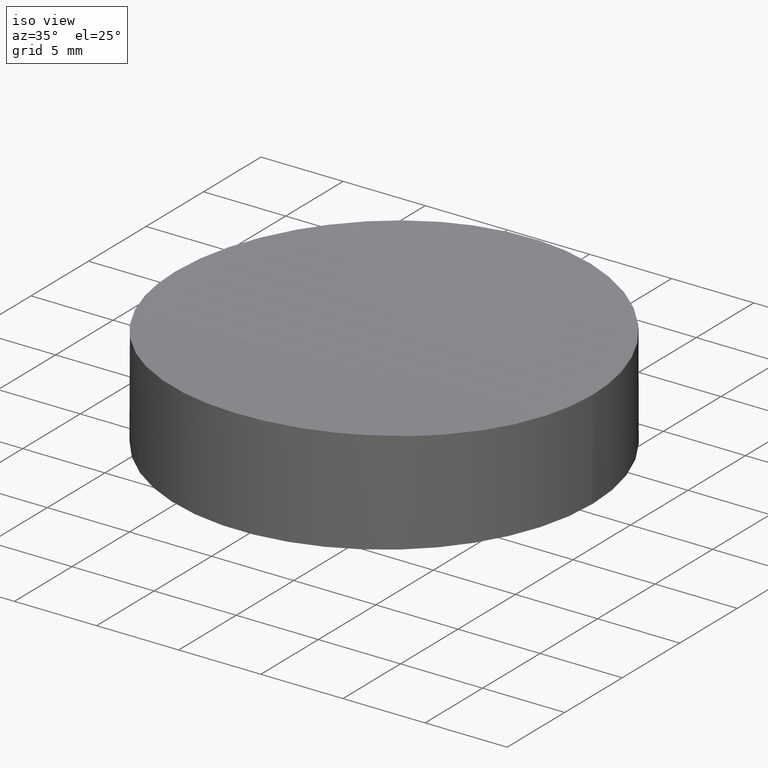
[diagram: clean part render]
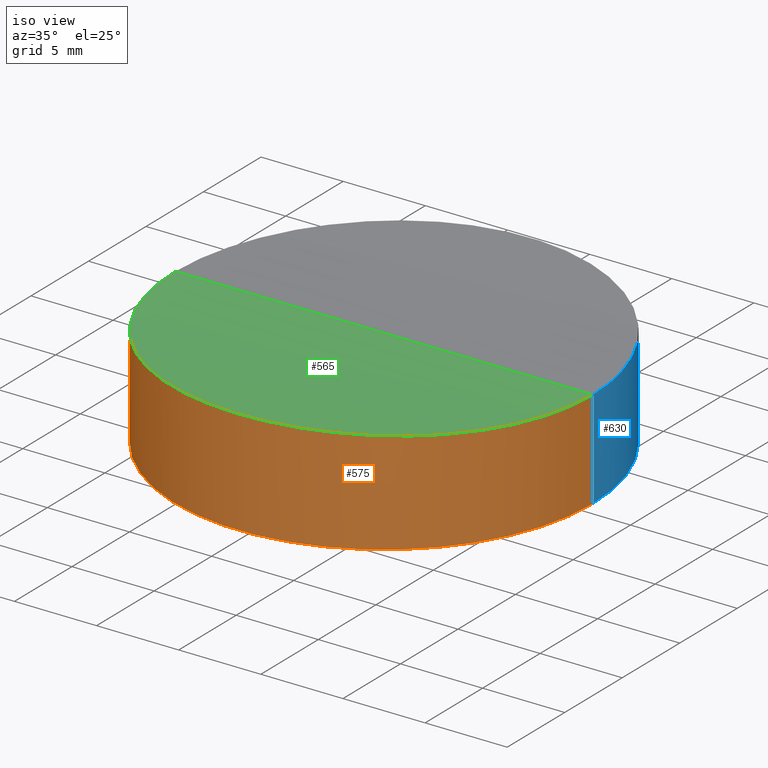
[diagram: same view with three faces highlighted in distinct colors, each labeled with its STEP entity id]
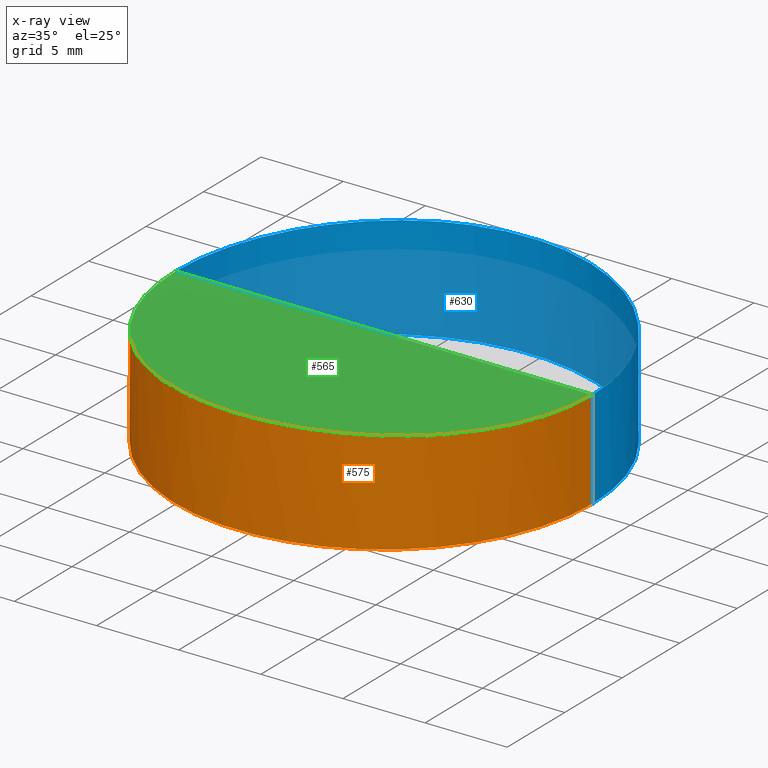
[diagram: x-ray of the same camera — body ghosted, the three highlighted faces saturated]
A machine part, iso view with three faces highlighted in distinct colors.
The next image is the same camera in x-ray (body ghosted, the three faces saturated) — at least one of them is partly hidden behind the body in this view.
Their STEP definitions:

[orange] entity #575 — the highlighted cylindrical surface (partial cylindrical patch) has radius 12.7 mm, axis along (-0, -0, -1).
#388 = VERTEX_POINT ( 'NONE', #1684 ) ;
#390 = VERTEX_POINT ( 'NONE', #1827 ) ;
#451 = EDGE_LOOP ( 'NONE', ( #524, #574, #453, #454 ) ) ;
#453 = ORIENTED_EDGE ( 'NONE', *, *, #637, .T. ) ;
#454 = ORIENTED_EDGE ( 'NONE', *, *, #667, .T. ) ;
#503 = EDGE_CURVE ( 'NONE', #388, #713, #2231, .T. ) ;
#524 = ORIENTED_EDGE ( 'NONE', *, *, #699, .F. ) ;
#574 = ORIENTED_EDGE ( 'NONE', *, *, #503, .T. ) ;
#575 = ADVANCED_FACE ( 'NONE', ( #2370 ), #2493, .T. ) ;
#632 = VERTEX_POINT ( 'NONE', #2328 ) ;
#637 = EDGE_CURVE ( 'NONE', #713, #632, #2439, .T. ) ;
#667 = EDGE_CURVE ( 'NONE', #632, #390, #2668, .T. ) ;
#699 = EDGE_CURVE ( 'NONE', #388, #390, #2705, .T. ) ;
#713 = VERTEX_POINT ( 'NONE', #2537 ) ;
#1684 = CARTESIAN_POINT ( 'NONE',  ( 12.70000000000000500, 1.555301381749067500E-015, 1.999999999999995800 ) ) ;
#1827 = CARTESIAN_POINT ( 'NONE',  ( 12.70000000000000500, 1.555301434917139000E-015, -4.000000000000000000 ) ) ;
#2092 = CARTESIAN_POINT ( 'NONE',  ( -7.388604470859069000, -10.33781600399698400, 2.267222046760642800 ) ) ;
#2093 = CARTESIAN_POINT ( 'NONE',  ( -6.353560289559221800, -11.02768945355803100, 2.303725172656423400 ) ) ;
#2094 = CARTESIAN_POINT ( 'NONE',  ( -5.623909153850859400, -11.41734296502815100, 2.325900470810826200 ) ) ;
#2095 = CARTESIAN_POINT ( 'NONE',  ( -4.469121802521158300, -11.89497662680307700, 2.353975830117742300 ) ) ;
#2096 = CARTESIAN_POINT ( 'NONE',  ( -4.072418647983648800, -12.03656196806417900, 2.362489142529019300 ) ) ;
#2097 = CARTESIAN_POINT ( 'NONE',  ( -3.275158102809504700, -12.27748985163885800, 2.377161105446660400 ) ) ;
#2098 = CARTESIAN_POINT ( 'NONE',  ( -2.872913817714648900, -12.37770122295740200, 2.383369942998577100 ) ) ;
#2099 = CARTESIAN_POINT ( 'NONE',  ( -1.655550766225447600, -12.61878112718173700, 2.398416102530490900 ) ) ;
#2100 = CARTESIAN_POINT ( 'NONE',  ( -0.8276481366964241200, -12.70067740162149800, 2.403675399554524800 ) ) ;
#2101 = CARTESIAN_POINT ( 'NONE',  ( 0.8483082274771430700, -12.69931419602769700, 2.403588660975610300 ) ) ;
#2102 = CARTESIAN_POINT ( 'NONE',  ( 1.672888267545759300, -12.61651603246785100, 2.398271942661669900 ) ) ;
#2103 = CARTESIAN_POINT ( 'NONE',  ( 2.890398404319837000, -12.37363548245251700, 2.383117635266919900 ) ) ;
#2104 = CARTESIAN_POINT ( 'NONE',  ( 3.292984803235546700, -12.27274920027010900, 2.376869078727324800 ) ) ;
#2105 = CARTESIAN_POINT ( 'NONE',  ( 4.091494995250455300, -12.03012013867323800, 2.362100338654659300 ) ) ;
#2106 = CARTESIAN_POINT ( 'NONE',  ( 4.487576126918870800, -11.88799977288512900, 2.353560046006068200 ) ) ;
#2107 = CARTESIAN_POINT ( 'NONE',  ( 5.639517414540563300, -11.40952916255220900, 2.325452939278816800 ) ) ;
#2108 = CARTESIAN_POINT ( 'NONE',  ( 6.368497793377156500, -11.01914604698337100, 2.303249985946835400 ) ) ;
#2109 = CARTESIAN_POINT ( 'NONE',  ( 7.403816264969353100, -10.32694730556058900, 2.266658902943366800 ) ) ;
#2110 = CARTESIAN_POINT ( 'NONE',  ( 7.740707249323311800, -10.07701176738241200, 2.253850004531733100 ) ) ;
#2111 = CARTESIAN_POINT ( 'NONE',  ( 8.386557480830829200, -9.546222734695144000, 2.227779119138635800 ) ) ;
#2161 = CARTESIAN_POINT ( 'NONE',  ( -12.70000000000000500, 7.735410065608419200E-016, 2.000000000000001300 ) ) ;
#2162 = CARTESIAN_POINT ( 'NONE',  ( -12.70000000000000300, -0.8391532630546664200, 2.000000000000001300 ) ) ;
#2163 = CARTESIAN_POINT ( 'NONE',  ( -12.61763786480346300, -1.669384181719684600, 2.005280313228064800 ) ) ;
#2164 = CARTESIAN_POINT ( 'NONE',  ( -12.37122047267850900, -2.901432615925214600, 2.020625125215953100 ) ) ;
#2165 = CARTESIAN_POINT ( 'NONE',  ( -12.26873508486799700, -3.307638366674052300, 2.026958691472615200 ) ) ;
#2166 = CARTESIAN_POINT ( 'NONE',  ( -12.02654079483861000, -4.101786032626258700, 2.041671658594710800 ) ) ;
#2167 = CARTESIAN_POINT ( 'NONE',  ( -11.74655671263795200, -4.880630826817265300, 2.058466114437714500 ) ) ;
#2168 = CARTESIAN_POINT ( 'NONE',  ( -11.39186837700602500, -5.629235482040930300, 2.078899974829728300 ) ) ;
#2169 = CARTESIAN_POINT ( 'NONE',  ( -10.99918146796549000, -6.362465266393438200, 2.100891539956230700 ) ) ;
#2170 = CARTESIAN_POINT ( 'NONE',  ( -10.78247057822795100, -6.723259149836504600, 2.112736927525555400 ) ) ;
#2171 = CARTESIAN_POINT ( 'NONE',  ( -10.08608729981529400, -7.762498595513628500, 2.149495311228891900 ) ) ;
#2172 = CARTESIAN_POINT ( 'NONE',  ( -9.560226869971947000, -8.401106609820749000, 2.175664939262353500 ) ) ;
#2173 = CARTESIAN_POINT ( 'NONE',  ( -8.680775445810230200, -9.279319488957433700, 2.215165494210416900 ) ) ;
#2174 = CARTESIAN_POINT ( 'NONE',  ( -8.372407273907677800, -9.558679325314427500, 2.228374578367898100 ) ) ;
#2175 = CARTESIAN_POINT ( 'NONE',  ( -7.724177416806991700, -10.08972929458786400, 2.254491823202657000 ) ) ;
#2231 = B_SPLINE_CURVE_WITH_KNOTS ( 'NONE', 3,
 ( #2287, #2286, #2285, #2284, #2283, #2282, #2281, #2280, #2279, #2278, #2277, #2276, #2275, #2111, #2110, #2109, #2108, #2107, #2106, #2105, #2104, #2103, #2102, #2101, #2100, #2099, #2098, #2097, #2096, #2095, #2094, #2093, #2092, #2175, #2174, #2173, #2172, #2171, #2170, #2169, #2168, #2167, #2166, #2165, #2164, #2163, #2162, #2161 ),
 .UNSPECIFIED., .F., .F.,
 ( 4, 2, 2, 1, 2, 2, 2, 2, 2, 2, 2, 2, 2, 2, 2, 2, 2, 2, 2, 2, 2, 1, 2, 2, 4 ),
 ( 0.03971598003820570000, 0.04219765973166782900, 0.04343849957839889700, 0.04467933942512995700, 0.04592017927186102500, 0.04716101911859208600, 0.04964269881205421500, 0.05088353865878527500, 0.05212437850551634300, 0.05460605819897845800, 0.05584689804570952500, 0.05708773789244058600, 0.05956941758590271500, 0.06205109727936483600, 0.06329193712609590400, 0.06453277697282697200, 0.06701445666628910700, 0.06825529651302016100, 0.06949613635975122900, 0.07197781605321335000, 0.07321865589994441800, 0.07445949574667548600, 0.07570033559340655400, 0.07694117544013762100, 0.07942285513359974300 ),
 .UNSPECIFIED. ) ;
#2275 = CARTESIAN_POINT ( 'NONE',  ( 8.694039573450229600, -9.266877295317971900, 2.214587751176750900 ) ) ;
#2276 = CARTESIAN_POINT ( 'NONE',  ( 9.571506192772881500, -8.388183644061646400, 2.175121108235243700 ) ) ;
#2277 = CARTESIAN_POINT ( 'NONE',  ( 10.09694224418786800, -7.748568066842769200, 2.148947048080419800 ) ) ;
#2278 = CARTESIAN_POINT ( 'NONE',  ( 10.79323682892251500, -6.706017909089646300, 2.112155842151472100 ) ) ;
#2279 = CARTESIAN_POINT ( 'NONE',  ( 11.00874976205191500, -6.345854026946872400, 2.100364016455334300 ) ) ;
#2280 = CARTESIAN_POINT ( 'NONE',  ( 11.39977427342449800, -5.613161423811448900, 2.078448514135381200 ) ) ;
#2281 = CARTESIAN_POINT ( 'NONE',  ( 11.75319859197980100, -4.864619427894196800, 2.058074213007907300 ) ) ;
#2282 = CARTESIAN_POINT ( 'NONE',  ( 12.03235775981117200, -4.084758851256675700, 2.041321477071881900 ) ) ;
#2283 = CARTESIAN_POINT ( 'NONE',  ( 12.27377393938599500, -3.288975739931371900, 2.026649250229401100 ) ) ;
#2284 = CARTESIAN_POINT ( 'NONE',  ( 12.37599559594765900, -2.880786299286889600, 2.020329293124447200 ) ) ;
#2285 = CARTESIAN_POINT ( 'NONE',  ( 12.61965315346128900, -1.652616428162615000, 2.005151661670250700 ) ) ;
#2286 = CARTESIAN_POINT ( 'NONE',  ( 12.70000000000000100, -0.8287822124059405200, 2.000000000000001300 ) ) ;
#2287 = CARTESIAN_POINT ( 'NONE',  ( 12.70000000000000500, 1.555301381749067500E-015, 1.999999999999995800 ) ) ;
#2321 = DIRECTION ( 'NONE',  ( -0.0000000000000000000, -0.0000000000000000000, -1.000000000000000000 ) ) ;
#2322 = VECTOR ( 'NONE', #2321, 1000.000000000000000 ) ;
#2323 = CARTESIAN_POINT ( 'NONE',  ( -12.70000000000000500, 0.0000000000000000000, 4.000000000000000000 ) ) ;
#2328 = CARTESIAN_POINT ( 'NONE',  ( -12.70000000000000500, 0.0000000000000000000, -4.000000000000000000 ) ) ;
#2370 = FACE_OUTER_BOUND ( 'NONE', #451, .T. ) ;
#2371 = CARTESIAN_POINT ( 'NONE',  ( 0.0000000000000000000, 0.0000000000000000000, 4.000000000000000000 ) ) ;
#2439 = LINE ( 'NONE', #2323, #2322 ) ;
#2490 = DIRECTION ( 'NONE',  ( -1.000000000000000000, 0.0000000000000000000, 0.0000000000000000000 ) ) ;
#2491 = DIRECTION ( 'NONE',  ( -0.0000000000000000000, -0.0000000000000000000, -1.000000000000000000 ) ) ;
#2493 = CYLINDRICAL_SURFACE ( 'NONE', #2494, 12.70000000000000500 ) ;
#2494 = AXIS2_PLACEMENT_3D ( 'NONE', #2371, #2491, #2490 ) ;
#2537 = CARTESIAN_POINT ( 'NONE',  ( -12.70000000000000500, 7.735410065608419200E-016, 2.000000000000001300 ) ) ;
#2618 = DIRECTION ( 'NONE',  ( -0.0000000000000000000, -0.0000000000000000000, -1.000000000000000000 ) ) ;
#2619 = VECTOR ( 'NONE', #2618, 1000.000000000000000 ) ;
#2668 = CIRCLE ( 'NONE', #2750, 12.70000000000000500 ) ;
#2699 = DIRECTION ( 'NONE',  ( 1.000000000000000000, 0.0000000000000000000, 0.0000000000000000000 ) ) ;
#2700 = DIRECTION ( 'NONE',  ( 0.0000000000000000000, 0.0000000000000000000, 1.000000000000000000 ) ) ;
#2704 = CARTESIAN_POINT ( 'NONE',  ( 12.70000000000000500, 1.555301434917139000E-015, 4.000000000000000000 ) ) ;
#2705 = LINE ( 'NONE', #2704, #2619 ) ;
#2723 = CARTESIAN_POINT ( 'NONE',  ( 0.0000000000000000000, 0.0000000000000000000, -4.000000000000000000 ) ) ;
#2750 = AXIS2_PLACEMENT_3D ( 'NONE', #2723, #2700, #2699 ) ;

[blue] entity #630 — the highlighted cylindrical surface (partial cylindrical patch) has radius 12.7 mm, axis along (-0, -0, -1).
#388 = VERTEX_POINT ( 'NONE', #1684 ) ;
#390 = VERTEX_POINT ( 'NONE', #1827 ) ;
#626 = ORIENTED_EDGE ( 'NONE', *, *, #637, .F. ) ;
#629 = ORIENTED_EDGE ( 'NONE', *, *, #699, .T. ) ;
#630 = ADVANCED_FACE ( 'NONE', ( #2393 ), #2394, .T. ) ;
#631 = EDGE_LOOP ( 'NONE', ( #646, #629, #636, #626 ) ) ;
#632 = VERTEX_POINT ( 'NONE', #2328 ) ;
#636 = ORIENTED_EDGE ( 'NONE', *, *, #638, .T. ) ;
#637 = EDGE_CURVE ( 'NONE', #713, #632, #2439, .T. ) ;
#638 = EDGE_CURVE ( 'NONE', #390, #632, #2319, .T. ) ;
#646 = ORIENTED_EDGE ( 'NONE', *, *, #714, .T. ) ;
#699 = EDGE_CURVE ( 'NONE', #388, #390, #2705, .T. ) ;
#713 = VERTEX_POINT ( 'NONE', #2537 ) ;
#714 = EDGE_CURVE ( 'NONE', #713, #388, #2948, .T. ) ;
#1684 = CARTESIAN_POINT ( 'NONE',  ( 12.70000000000000500, 1.555301381749067500E-015, 1.999999999999995800 ) ) ;
#1827 = CARTESIAN_POINT ( 'NONE',  ( 12.70000000000000500, 1.555301434917139000E-015, -4.000000000000000000 ) ) ;
#2316 = DIRECTION ( 'NONE',  ( 1.000000000000000000, 0.0000000000000000000, 0.0000000000000000000 ) ) ;
#2317 = DIRECTION ( 'NONE',  ( 0.0000000000000000000, 0.0000000000000000000, 1.000000000000000000 ) ) ;
#2318 = CARTESIAN_POINT ( 'NONE',  ( 0.0000000000000000000, 0.0000000000000000000, -4.000000000000000000 ) ) ;
#2319 = CIRCLE ( 'NONE', #2325, 12.70000000000000500 ) ;
#2321 = DIRECTION ( 'NONE',  ( -0.0000000000000000000, -0.0000000000000000000, -1.000000000000000000 ) ) ;
#2322 = VECTOR ( 'NONE', #2321, 1000.000000000000000 ) ;
#2323 = CARTESIAN_POINT ( 'NONE',  ( -12.70000000000000500, 0.0000000000000000000, 4.000000000000000000 ) ) ;
#2325 = AXIS2_PLACEMENT_3D ( 'NONE', #2318, #2317, #2316 ) ;
#2328 = CARTESIAN_POINT ( 'NONE',  ( -12.70000000000000500, 0.0000000000000000000, -4.000000000000000000 ) ) ;
#2347 = CARTESIAN_POINT ( 'NONE',  ( 0.0000000000000000000, 0.0000000000000000000, 4.000000000000000000 ) ) ;
#2392 = AXIS2_PLACEMENT_3D ( 'NONE', #2347, #2444, #2438 ) ;
#2393 = FACE_OUTER_BOUND ( 'NONE', #631, .T. ) ;
#2394 = CYLINDRICAL_SURFACE ( 'NONE', #2392, 12.70000000000000500 ) ;
#2438 = DIRECTION ( 'NONE',  ( -1.000000000000000000, 0.0000000000000000000, 0.0000000000000000000 ) ) ;
#2439 = LINE ( 'NONE', #2323, #2322 ) ;
#2444 = DIRECTION ( 'NONE',  ( -0.0000000000000000000, -0.0000000000000000000, -1.000000000000000000 ) ) ;
#2537 = CARTESIAN_POINT ( 'NONE',  ( -12.70000000000000500, 7.735410065608419200E-016, 2.000000000000001300 ) ) ;
#2618 = DIRECTION ( 'NONE',  ( -0.0000000000000000000, -0.0000000000000000000, -1.000000000000000000 ) ) ;
#2619 = VECTOR ( 'NONE', #2618, 1000.000000000000000 ) ;
#2704 = CARTESIAN_POINT ( 'NONE',  ( 12.70000000000000500, 1.555301434917139000E-015, 4.000000000000000000 ) ) ;
#2705 = LINE ( 'NONE', #2704, #2619 ) ;
#2877 = CARTESIAN_POINT ( 'NONE',  ( 12.70000000000000500, 1.555301381749067500E-015, 1.999999999999995800 ) ) ;
#2878 = CARTESIAN_POINT ( 'NONE',  ( 12.70000000000001000, 0.4144861277153563100, 2.000000000000001800 ) ) ;
#2879 = CARTESIAN_POINT ( 'NONE',  ( 12.67976090682242200, 0.8302186030310151300, 2.001288379649720700 ) ) ;
#2880 = CARTESIAN_POINT ( 'NONE',  ( 12.59745373520595800, 1.664259286393326300, 2.006489720899927500 ) ) ;
#2881 = CARTESIAN_POINT ( 'NONE',  ( 12.53573625039880600, 2.077861640798814400, 2.010379976068354100 ) ) ;
#2882 = CARTESIAN_POINT ( 'NONE',  ( 12.29217045674118200, 3.298683800227344400, 2.025548655720571700 ) ) ;
#2883 = CARTESIAN_POINT ( 'NONE',  ( 12.05204324687147200, 4.090463364847195700, 2.040352765529843500 ) ) ;
#2884 = CARTESIAN_POINT ( 'NONE',  ( 11.57398288561062900, 5.244647691170178500, 2.068407264475261400 ) ) ;
#2885 = CARTESIAN_POINT ( 'NONE',  ( 11.39378296126806600, 5.625417092132650500, 2.078791131580169300 ) ) ;
#2886 = CARTESIAN_POINT ( 'NONE',  ( 11.00056021974050900, 6.360132269128002700, 2.100815933656190500 ) ) ;
#2948 = B_SPLINE_CURVE_WITH_KNOTS ( 'NONE', 3,
 ( #2989, #2988, #2987, #2986, #2985, #2984, #2983, #2982, #2981, #2980, #2979, #2978, #2977, #2976, #2975, #2974, #2973, #2972, #2971, #2970, #2969, #2968, #2967, #2966, #2965, #2964, #2963, #2962, #2961, #2960, #2959, #2958, #2957, #2956, #2955, #2954, #2953, #2952, #2951, #2886, #2885, #2884, #2883, #2882, #2881, #2880, #2879, #2878, #2877 ),
 .UNSPECIFIED., .F., .F.,
 ( 4, 2, 2, 2, 2, 2, 2, 2, 2, 1, 2, 2, 2, 2, 2, 2, 2, 2, 2, 2, 2, 2, 2, 2, 4 ),
 ( 7.472843920192310500E-019, 0.002482248752387867100, 0.003723373128581800000, 0.004964497504775733400, 0.007446746257163597500, 0.008687870633357526500, 0.009928995009551458100, 0.01241124376193931600, 0.01365236813813324800, 0.01489349251432717600, 0.01613461689052110200, 0.01737574126671503200, 0.01985799001910288800, 0.02109911439529681800, 0.02234023877149074500, 0.02482248752387859700, 0.02606361190007252700, 0.02730473627626645000, 0.02978698502865430300, 0.03226923378104214900, 0.03351035815723607500, 0.03475148253342999500, 0.03723373128581785500, 0.03847485566201177400, 0.03971598003820570000 ),
 .UNSPECIFIED. ) ;
#2951 = CARTESIAN_POINT ( 'NONE',  ( 10.78710851142859500, 6.715608279116313600, 2.112484159309983200 ) ) ;
#2952 = CARTESIAN_POINT ( 'NONE',  ( 10.09731352463083500, 7.747172256300341800, 2.148918301366808500 ) ) ;
#2953 = CARTESIAN_POINT ( 'NONE',  ( 9.571352663058334500, 8.389407237764459100, 2.175151990581756700 ) ) ;
#2954 = CARTESIAN_POINT ( 'NONE',  ( 8.385401806321377500, 9.574861991080116000, 2.228445334076837500 ) ) ;
#2955 = CARTESIAN_POINT ( 'NONE',  ( 7.743981436524003400, 10.09977743936941500, 2.254645977211236400 ) ) ;
#2956 = CARTESIAN_POINT ( 'NONE',  ( 6.711936032217841400, 10.78939770807072800, 2.291107141918747600 ) ) ;
#2957 = CARTESIAN_POINT ( 'NONE',  ( 6.356182095544022900, 11.00285800646163100, 2.302789429126801800 ) ) ;
#2958 = CARTESIAN_POINT ( 'NONE',  ( 5.620620563876059400, 11.39616425026441600, 2.324848229733345500 ) ) ;
#2959 = CARTESIAN_POINT ( 'NONE',  ( 5.239936807328471800, 11.57610430663711700, 2.335232946739344200 ) ) ;
#2960 = CARTESIAN_POINT ( 'NONE',  ( 4.086505127549452600, 12.05333939181437100, 2.363283479942750500 ) ) ;
#2961 = CARTESIAN_POINT ( 'NONE',  ( 3.294701605476496400, 12.29327893600819300, 2.378103151007764400 ) ) ;
#2962 = CARTESIAN_POINT ( 'NONE',  ( 2.072906252431167200, 12.53656655889243000, 2.393283927966209000 ) ) ;
#2963 = CARTESIAN_POINT ( 'NONE',  ( 1.658104162780284400, 12.59824719085119300, 2.397179758355953500 ) ) ;
#2964 = CARTESIAN_POINT ( 'NONE',  ( 0.8251150661137934800, 12.68007597864031900, 2.402361351954454400 ) ) ;
#2965 = CARTESIAN_POINT ( 'NONE',  ( 0.4097417701725463700, 12.70014740819631700, 2.403641676928040600 ) ) ;
#2966 = CARTESIAN_POINT ( 'NONE',  ( -0.8331147684233760600, 12.69970274515089200, 2.403613383726219700 ) ) ;
#2967 = CARTESIAN_POINT ( 'NONE',  ( -1.657365612972364000, 12.61910536619644500, 2.398434712431031000 ) ) ;
#2968 = CARTESIAN_POINT ( 'NONE',  ( -2.887090310335397500, 12.37454563992251800, 2.383173826507848100 ) ) ;
#2969 = CARTESIAN_POINT ( 'NONE',  ( -3.294718615978973600, 12.27222493930153200, 2.376837153929217000 ) ) ;
#2970 = CARTESIAN_POINT ( 'NONE',  ( -4.089904550303071300, 12.03060083656270200, 2.362129611786817600 ) ) ;
#2971 = CARTESIAN_POINT ( 'NONE',  ( -4.869469068220247700, 11.75119573401173400, 2.345337562814080000 ) ) ;
#2972 = CARTESIAN_POINT ( 'NONE',  ( -5.618239315415783300, 11.39728586267667300, 2.324913031262356300 ) ) ;
#2973 = CARTESIAN_POINT ( 'NONE',  ( -6.351390703768594800, 11.00557014283835500, 2.302939664001123300 ) ) ;
#2974 = CARTESIAN_POINT ( 'NONE',  ( -6.712069616490268200, 10.78946141326327000, 2.291108004952615100 ) ) ;
#2975 = CARTESIAN_POINT ( 'NONE',  ( -7.753407470635663000, 10.09317081466105700, 2.254301721370537000 ) ) ;
#2976 = CARTESIAN_POINT ( 'NONE',  ( -8.392760262152716400, 9.567535623547597000, 2.228115316494326600 ) ) ;
#2977 = CARTESIAN_POINT ( 'NONE',  ( -9.271519500645128500, 8.689100461532985900, 2.188625335927588000 ) ) ;
#2978 = CARTESIAN_POINT ( 'NONE',  ( -9.550964742982245100, 8.381183918893571100, 2.175425476067429600 ) ) ;
#2979 = CARTESIAN_POINT ( 'NONE',  ( -10.08205419769909700, 7.734167993951780700, 2.149337071416413700 ) ) ;
#2980 = CARTESIAN_POINT ( 'NONE',  ( -10.33129341991312900, 7.397742248627085200, 2.136564965827267000 ) ) ;
#2981 = CARTESIAN_POINT ( 'NONE',  ( -11.02265095616004400, 6.362391242332801500, 2.100032531708701200 ) ) ;
#2982 = CARTESIAN_POINT ( 'NONE',  ( -11.41283538777927700, 5.632959334504684900, 2.077861389834879400 ) ) ;
#2983 = CARTESIAN_POINT ( 'NONE',  ( -11.89108636183868700, 4.479433641486018300, 2.049799678562251900 ) ) ;
#2984 = CARTESIAN_POINT ( 'NONE',  ( -12.03304610097763200, 4.082848089856195600, 2.041280196571262400 ) ) ;
#2985 = CARTESIAN_POINT ( 'NONE',  ( -12.27493101618141600, 3.284800685137989600, 2.026578369999672000 ) ) ;
#2986 = CARTESIAN_POINT ( 'NONE',  ( -12.37552371524483300, 2.882303675063078600, 2.020358284304327500 ) ) ;
#2987 = CARTESIAN_POINT ( 'NONE',  ( -12.61760998082340600, 1.664621632474753100, 2.005279730504226300 ) ) ;
#2988 = CARTESIAN_POINT ( 'NONE',  ( -12.70000000000000600, 0.8393456842021888000, 2.000000000000001800 ) ) ;
#2989 = CARTESIAN_POINT ( 'NONE',  ( -12.70000000000000500, 7.735410065608419200E-016, 2.000000000000001300 ) ) ;

[green] entity #565 — the highlighted cylindrical surface (partial cylindrical patch) has radius 200 mm, axis along (1, -0, -0).
#388 = VERTEX_POINT ( 'NONE', #1684 ) ;
#389 = EDGE_CURVE ( 'NONE', #713, #388, #1699, .T. ) ;
#503 = EDGE_CURVE ( 'NONE', #388, #713, #2231, .T. ) ;
#562 = ORIENTED_EDGE ( 'NONE', *, *, #503, .F. ) ;
#565 = ADVANCED_FACE ( 'NONE', ( #2482 ), #2481, .F. ) ;
#566 = ORIENTED_EDGE ( 'NONE', *, *, #389, .F. ) ;
#568 = EDGE_LOOP ( 'NONE', ( #566, #562 ) ) ;
#713 = VERTEX_POINT ( 'NONE', #2537 ) ;
#1684 = CARTESIAN_POINT ( 'NONE',  ( 12.70000000000000500, 1.555301381749067500E-015, 1.999999999999995800 ) ) ;
#1696 = DIRECTION ( 'NONE',  ( 1.000000000000000000, -0.0000000000000000000, -0.0000000000000000000 ) ) ;
#1697 = VECTOR ( 'NONE', #1696, 1000.000000000000000 ) ;
#1698 = CARTESIAN_POINT ( 'NONE',  ( -12.70000000000000500, 0.0000000000000000000, 2.000000000000001800 ) ) ;
#1699 = LINE ( 'NONE', #1698, #1697 ) ;
#2092 = CARTESIAN_POINT ( 'NONE',  ( -7.388604470859069000, -10.33781600399698400, 2.267222046760642800 ) ) ;
#2093 = CARTESIAN_POINT ( 'NONE',  ( -6.353560289559221800, -11.02768945355803100, 2.303725172656423400 ) ) ;
#2094 = CARTESIAN_POINT ( 'NONE',  ( -5.623909153850859400, -11.41734296502815100, 2.325900470810826200 ) ) ;
#2095 = CARTESIAN_POINT ( 'NONE',  ( -4.469121802521158300, -11.89497662680307700, 2.353975830117742300 ) ) ;
#2096 = CARTESIAN_POINT ( 'NONE',  ( -4.072418647983648800, -12.03656196806417900, 2.362489142529019300 ) ) ;
#2097 = CARTESIAN_POINT ( 'NONE',  ( -3.275158102809504700, -12.27748985163885800, 2.377161105446660400 ) ) ;
#2098 = CARTESIAN_POINT ( 'NONE',  ( -2.872913817714648900, -12.37770122295740200, 2.383369942998577100 ) ) ;
#2099 = CARTESIAN_POINT ( 'NONE',  ( -1.655550766225447600, -12.61878112718173700, 2.398416102530490900 ) ) ;
#2100 = CARTESIAN_POINT ( 'NONE',  ( -0.8276481366964241200, -12.70067740162149800, 2.403675399554524800 ) ) ;
#2101 = CARTESIAN_POINT ( 'NONE',  ( 0.8483082274771430700, -12.69931419602769700, 2.403588660975610300 ) ) ;
#2102 = CARTESIAN_POINT ( 'NONE',  ( 1.672888267545759300, -12.61651603246785100, 2.398271942661669900 ) ) ;
#2103 = CARTESIAN_POINT ( 'NONE',  ( 2.890398404319837000, -12.37363548245251700, 2.383117635266919900 ) ) ;
#2104 = CARTESIAN_POINT ( 'NONE',  ( 3.292984803235546700, -12.27274920027010900, 2.376869078727324800 ) ) ;
#2105 = CARTESIAN_POINT ( 'NONE',  ( 4.091494995250455300, -12.03012013867323800, 2.362100338654659300 ) ) ;
#2106 = CARTESIAN_POINT ( 'NONE',  ( 4.487576126918870800, -11.88799977288512900, 2.353560046006068200 ) ) ;
#2107 = CARTESIAN_POINT ( 'NONE',  ( 5.639517414540563300, -11.40952916255220900, 2.325452939278816800 ) ) ;
#2108 = CARTESIAN_POINT ( 'NONE',  ( 6.368497793377156500, -11.01914604698337100, 2.303249985946835400 ) ) ;
#2109 = CARTESIAN_POINT ( 'NONE',  ( 7.403816264969353100, -10.32694730556058900, 2.266658902943366800 ) ) ;
#2110 = CARTESIAN_POINT ( 'NONE',  ( 7.740707249323311800, -10.07701176738241200, 2.253850004531733100 ) ) ;
#2111 = CARTESIAN_POINT ( 'NONE',  ( 8.386557480830829200, -9.546222734695144000, 2.227779119138635800 ) ) ;
#2161 = CARTESIAN_POINT ( 'NONE',  ( -12.70000000000000500, 7.735410065608419200E-016, 2.000000000000001300 ) ) ;
#2162 = CARTESIAN_POINT ( 'NONE',  ( -12.70000000000000300, -0.8391532630546664200, 2.000000000000001300 ) ) ;
#2163 = CARTESIAN_POINT ( 'NONE',  ( -12.61763786480346300, -1.669384181719684600, 2.005280313228064800 ) ) ;
#2164 = CARTESIAN_POINT ( 'NONE',  ( -12.37122047267850900, -2.901432615925214600, 2.020625125215953100 ) ) ;
#2165 = CARTESIAN_POINT ( 'NONE',  ( -12.26873508486799700, -3.307638366674052300, 2.026958691472615200 ) ) ;
#2166 = CARTESIAN_POINT ( 'NONE',  ( -12.02654079483861000, -4.101786032626258700, 2.041671658594710800 ) ) ;
#2167 = CARTESIAN_POINT ( 'NONE',  ( -11.74655671263795200, -4.880630826817265300, 2.058466114437714500 ) ) ;
#2168 = CARTESIAN_POINT ( 'NONE',  ( -11.39186837700602500, -5.629235482040930300, 2.078899974829728300 ) ) ;
#2169 = CARTESIAN_POINT ( 'NONE',  ( -10.99918146796549000, -6.362465266393438200, 2.100891539956230700 ) ) ;
#2170 = CARTESIAN_POINT ( 'NONE',  ( -10.78247057822795100, -6.723259149836504600, 2.112736927525555400 ) ) ;
#2171 = CARTESIAN_POINT ( 'NONE',  ( -10.08608729981529400, -7.762498595513628500, 2.149495311228891900 ) ) ;
#2172 = CARTESIAN_POINT ( 'NONE',  ( -9.560226869971947000, -8.401106609820749000, 2.175664939262353500 ) ) ;
#2173 = CARTESIAN_POINT ( 'NONE',  ( -8.680775445810230200, -9.279319488957433700, 2.215165494210416900 ) ) ;
#2174 = CARTESIAN_POINT ( 'NONE',  ( -8.372407273907677800, -9.558679325314427500, 2.228374578367898100 ) ) ;
#2175 = CARTESIAN_POINT ( 'NONE',  ( -7.724177416806991700, -10.08972929458786400, 2.254491823202657000 ) ) ;
#2231 = B_SPLINE_CURVE_WITH_KNOTS ( 'NONE', 3,
 ( #2287, #2286, #2285, #2284, #2283, #2282, #2281, #2280, #2279, #2278, #2277, #2276, #2275, #2111, #2110, #2109, #2108, #2107, #2106, #2105, #2104, #2103, #2102, #2101, #2100, #2099, #2098, #2097, #2096, #2095, #2094, #2093, #2092, #2175, #2174, #2173, #2172, #2171, #2170, #2169, #2168, #2167, #2166, #2165, #2164, #2163, #2162, #2161 ),
 .UNSPECIFIED., .F., .F.,
 ( 4, 2, 2, 1, 2, 2, 2, 2, 2, 2, 2, 2, 2, 2, 2, 2, 2, 2, 2, 2, 2, 1, 2, 2, 4 ),
 ( 0.03971598003820570000, 0.04219765973166782900, 0.04343849957839889700, 0.04467933942512995700, 0.04592017927186102500, 0.04716101911859208600, 0.04964269881205421500, 0.05088353865878527500, 0.05212437850551634300, 0.05460605819897845800, 0.05584689804570952500, 0.05708773789244058600, 0.05956941758590271500, 0.06205109727936483600, 0.06329193712609590400, 0.06453277697282697200, 0.06701445666628910700, 0.06825529651302016100, 0.06949613635975122900, 0.07197781605321335000, 0.07321865589994441800, 0.07445949574667548600, 0.07570033559340655400, 0.07694117544013762100, 0.07942285513359974300 ),
 .UNSPECIFIED. ) ;
#2275 = CARTESIAN_POINT ( 'NONE',  ( 8.694039573450229600, -9.266877295317971900, 2.214587751176750900 ) ) ;
#2276 = CARTESIAN_POINT ( 'NONE',  ( 9.571506192772881500, -8.388183644061646400, 2.175121108235243700 ) ) ;
#2277 = CARTESIAN_POINT ( 'NONE',  ( 10.09694224418786800, -7.748568066842769200, 2.148947048080419800 ) ) ;
#2278 = CARTESIAN_POINT ( 'NONE',  ( 10.79323682892251500, -6.706017909089646300, 2.112155842151472100 ) ) ;
#2279 = CARTESIAN_POINT ( 'NONE',  ( 11.00874976205191500, -6.345854026946872400, 2.100364016455334300 ) ) ;
#2280 = CARTESIAN_POINT ( 'NONE',  ( 11.39977427342449800, -5.613161423811448900, 2.078448514135381200 ) ) ;
#2281 = CARTESIAN_POINT ( 'NONE',  ( 11.75319859197980100, -4.864619427894196800, 2.058074213007907300 ) ) ;
#2282 = CARTESIAN_POINT ( 'NONE',  ( 12.03235775981117200, -4.084758851256675700, 2.041321477071881900 ) ) ;
#2283 = CARTESIAN_POINT ( 'NONE',  ( 12.27377393938599500, -3.288975739931371900, 2.026649250229401100 ) ) ;
#2284 = CARTESIAN_POINT ( 'NONE',  ( 12.37599559594765900, -2.880786299286889600, 2.020329293124447200 ) ) ;
#2285 = CARTESIAN_POINT ( 'NONE',  ( 12.61965315346128900, -1.652616428162615000, 2.005151661670250700 ) ) ;
#2286 = CARTESIAN_POINT ( 'NONE',  ( 12.70000000000000100, -0.8287822124059405200, 2.000000000000001300 ) ) ;
#2287 = CARTESIAN_POINT ( 'NONE',  ( 12.70000000000000500, 1.555301381749067500E-015, 1.999999999999995800 ) ) ;
#2372 = AXIS2_PLACEMENT_3D ( 'NONE', #2496, #2495, #2492 ) ;
#2481 = CYLINDRICAL_SURFACE ( 'NONE', #2372, 200.0000000000000000 ) ;
#2482 = FACE_OUTER_BOUND ( 'NONE', #568, .T. ) ;
#2492 = DIRECTION ( 'NONE',  ( 0.0000000000000000000, 0.0000000000000000000, -1.000000000000000000 ) ) ;
#2495 = DIRECTION ( 'NONE',  ( 1.000000000000000000, -0.0000000000000000000, -0.0000000000000000000 ) ) ;
#2496 = CARTESIAN_POINT ( 'NONE',  ( -12.70000000000000500, 0.0000000000000000000, 202.0000000000000000 ) ) ;
#2537 = CARTESIAN_POINT ( 'NONE',  ( -12.70000000000000500, 7.735410065608419200E-016, 2.000000000000001300 ) ) ;